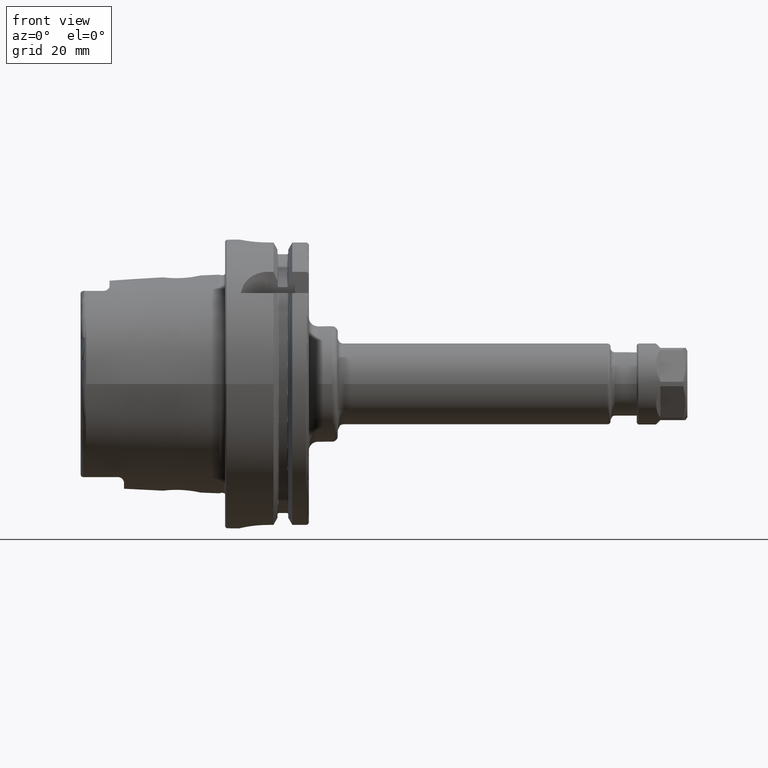
[diagram: clean part render]
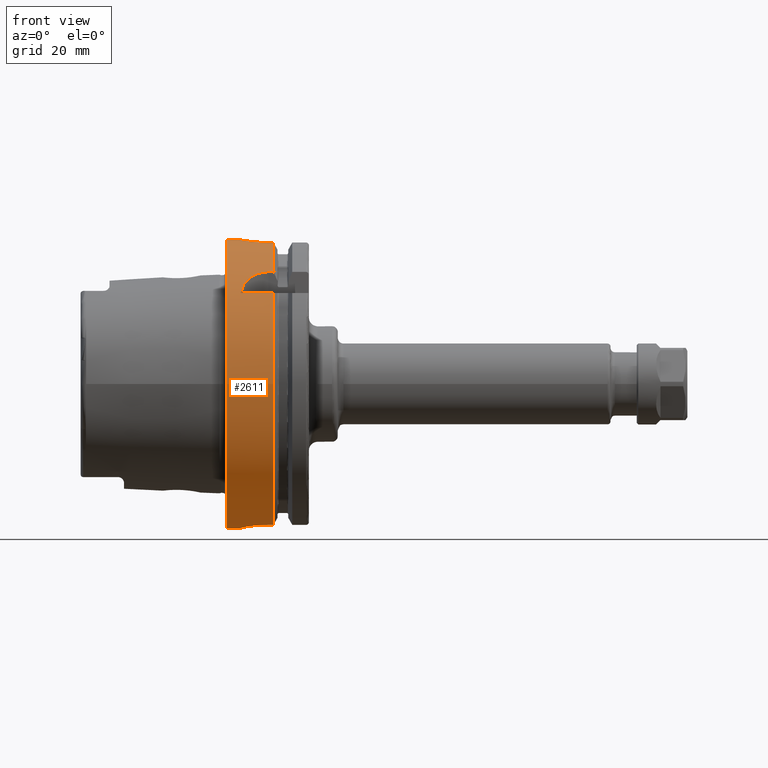
[diagram: same view with one face highlighted and labeled with its STEP entity id]
A machine part, front view. The second image highlights one B-rep face of the part: STEP entity #2611.
In plain terms, the highlighted cylindrical surface (bore or boss wall) has radius 50 mm, axis along (1, 0, 0).
Its self-contained STEP definition (entity closure, byte-faithful):
#114=B_SPLINE_CURVE_WITH_KNOTS('',3,(#4821,#4822,#4823,#4824,#4825,#4826,
#4827,#4828,#4829,#4830,#4831,#4832,#4833,#4834,#4835,#4836,#4837,#4838,
#4839,#4840,#4841,#4842,#4843,#4844,#4845,#4846),.UNSPECIFIED.,.F.,.F.,
(4,2,2,2,2,2,2,2,2,2,2,2,4),(0.,0.188478911015149,0.376957822030298,0.565436091508923,
0.753914360987547,0.942392630466172,1.1308708999448,1.31934981095995,1.50782872197509,
1.69630763299024,1.88478654400539,2.07326481348402,2.26174308296264),
 .UNSPECIFIED.);
#115=B_SPLINE_CURVE_WITH_KNOTS('',3,(#4847,#4848,#4849,#4850,#4851,#4852,
#4853,#4854,#4855,#4856),.UNSPECIFIED.,.F.,.F.,(4,2,2,2,4),(2.26174308296264,
2.45022135244127,2.63869962191989,2.82717853293504,3.01565744395019),
 .UNSPECIFIED.);
#116=B_SPLINE_CURVE_WITH_KNOTS('',3,(#4865,#4866,#4867,#4868,#4869,#4870,
#4871,#4872,#4873,#4874,#4875,#4876),.UNSPECIFIED.,.F.,.F.,(4,2,2,2,2,4),
(1.13213255574021,1.59216410027009,1.87572541272146,2.15928672517283,2.38471683342296,
2.61014694167308),.UNSPECIFIED.);
#123=B_SPLINE_CURVE_WITH_KNOTS('',3,(#4989,#4990,#4991,#4992,#4993,#4994,
#4995,#4996,#4997,#4998,#4999,#5000,#5001,#5002,#5003,#5004,#5005,#5006),
 .UNSPECIFIED.,.F.,.F.,(4,2,2,2,2,2,2,2,4),(0.,0.377795255890194,0.755590511780389,
1.13336459804459,1.51113868430879,1.88891277057299,2.26668685683718,2.64448211272738,
3.02227736861757),.UNSPECIFIED.);
#124=B_SPLINE_CURVE_WITH_KNOTS('',3,(#5014,#5015,#5016,#5017,#5018,#5019,
#5020,#5021,#5022,#5023),.UNSPECIFIED.,.F.,.F.,(4,2,2,2,4),(0.,0.377863193874929,
0.755726387749858,1.13417752669663,1.51262866564341),.UNSPECIFIED.);
#125=B_SPLINE_CURVE_WITH_KNOTS('',3,(#5027,#5028,#5029,#5030,#5031,#5032,
#5033,#5034,#5035,#5036),.UNSPECIFIED.,.F.,.F.,(4,2,2,2,4),(1.50996806152532,
1.8884192004721,2.26687033941887,2.6447335332938,3.02259672716873),
 .UNSPECIFIED.);
#185=FACE_BOUND('',#488,.T.);
#326=FACE_OUTER_BOUND('',#487,.T.);
#487=EDGE_LOOP('',(#1975,#1976,#1977,#1978,#1979,#1980,#1981,#1982,#1983,
#1984,#1985,#1986,#1987,#1988,#1989,#1990,#1991,#1992));
#488=EDGE_LOOP('',(#1993,#1994));
#655=LINE('',#4882,#797);
#661=LINE('',#4934,#803);
#666=LINE('',#4987,#808);
#667=LINE('',#5008,#809);
#668=LINE('',#5012,#810);
#669=LINE('',#5038,#811);
#670=LINE('',#5042,#812);
#797=VECTOR('',#3404,10.);
#803=VECTOR('',#3412,10.);
#808=VECTOR('',#3421,10.);
#809=VECTOR('',#3422,10.);
#810=VECTOR('',#3425,10.);
#811=VECTOR('',#3428,10.);
#812=VECTOR('',#3431,50.);
#954=CIRCLE('',#2908,50.);
#955=CIRCLE('',#2909,50.);
#956=CIRCLE('',#2910,50.);
#957=CIRCLE('',#2911,50.);
#958=CIRCLE('',#2912,50.);
#959=CIRCLE('',#2913,50.);
#1166=VERTEX_POINT('',#4818);
#1167=VERTEX_POINT('',#4820);
#1169=VERTEX_POINT('',#4863);
#1170=VERTEX_POINT('',#4864);
#1172=VERTEX_POINT('',#4881);
#1181=VERTEX_POINT('',#4933);
#1190=VERTEX_POINT('',#4984);
#1191=VERTEX_POINT('',#4986);
#1192=VERTEX_POINT('',#4988);
#1193=VERTEX_POINT('',#5007);
#1194=VERTEX_POINT('',#5009);
#1195=VERTEX_POINT('',#5011);
#1196=VERTEX_POINT('',#5013);
#1197=VERTEX_POINT('',#5024);
#1198=VERTEX_POINT('',#5026);
#1199=VERTEX_POINT('',#5037);
#1200=VERTEX_POINT('',#5039);
#1201=VERTEX_POINT('',#5041);
#1462=EDGE_CURVE('',#1167,#1166,#114,.T.);
#1463=EDGE_CURVE('',#1166,#1167,#115,.T.);
#1466=EDGE_CURVE('',#1169,#1170,#116,.T.);
#1469=EDGE_CURVE('',#1170,#1172,#655,.T.);
#1480=EDGE_CURVE('',#1181,#1169,#661,.T.);
#1490=EDGE_CURVE('',#1190,#1172,#954,.T.);
#1491=EDGE_CURVE('',#1190,#1191,#666,.T.);
#1492=EDGE_CURVE('',#1191,#1192,#123,.T.);
#1493=EDGE_CURVE('',#1192,#1193,#667,.T.);
#1494=EDGE_CURVE('',#1194,#1193,#955,.T.);
#1495=EDGE_CURVE('',#1194,#1195,#668,.T.);
#1496=EDGE_CURVE('',#1195,#1196,#124,.T.);
#1497=EDGE_CURVE('',#1196,#1197,#956,.T.);
#1498=EDGE_CURVE('',#1197,#1198,#125,.T.);
#1499=EDGE_CURVE('',#1198,#1199,#669,.T.);
#1500=EDGE_CURVE('',#1200,#1199,#957,.T.);
#1501=EDGE_CURVE('',#1200,#1201,#670,.T.);
#1502=EDGE_CURVE('',#1201,#1201,#958,.T.);
#1503=EDGE_CURVE('',#1181,#1200,#959,.T.);
#1975=ORIENTED_EDGE('',*,*,#1480,.T.);
#1976=ORIENTED_EDGE('',*,*,#1466,.T.);
#1977=ORIENTED_EDGE('',*,*,#1469,.T.);
#1978=ORIENTED_EDGE('',*,*,#1490,.F.);
#1979=ORIENTED_EDGE('',*,*,#1491,.T.);
#1980=ORIENTED_EDGE('',*,*,#1492,.T.);
#1981=ORIENTED_EDGE('',*,*,#1493,.T.);
#1982=ORIENTED_EDGE('',*,*,#1494,.F.);
#1983=ORIENTED_EDGE('',*,*,#1495,.T.);
#1984=ORIENTED_EDGE('',*,*,#1496,.T.);
#1985=ORIENTED_EDGE('',*,*,#1497,.T.);
#1986=ORIENTED_EDGE('',*,*,#1498,.T.);
#1987=ORIENTED_EDGE('',*,*,#1499,.T.);
#1988=ORIENTED_EDGE('',*,*,#1500,.F.);
#1989=ORIENTED_EDGE('',*,*,#1501,.T.);
#1990=ORIENTED_EDGE('',*,*,#1502,.T.);
#1991=ORIENTED_EDGE('',*,*,#1501,.F.);
#1992=ORIENTED_EDGE('',*,*,#1503,.F.);
#1993=ORIENTED_EDGE('',*,*,#1462,.T.);
#1994=ORIENTED_EDGE('',*,*,#1463,.T.);
#2538=CYLINDRICAL_SURFACE('',#2907,50.);
#2611=ADVANCED_FACE('',(#326,#185),#2538,.T.);
#2907=AXIS2_PLACEMENT_3D('',#4983,#3417,#3418);
#2908=AXIS2_PLACEMENT_3D('',#4985,#3419,#3420);
#2909=AXIS2_PLACEMENT_3D('',#5010,#3423,#3424);
#2910=AXIS2_PLACEMENT_3D('',#5025,#3426,#3427);
#2911=AXIS2_PLACEMENT_3D('',#5040,#3429,#3430);
#2912=AXIS2_PLACEMENT_3D('',#5043,#3432,#3433);
#2913=AXIS2_PLACEMENT_3D('',#5044,#3434,#3435);
#3404=DIRECTION('',(1.,0.,0.));
#3412=DIRECTION('',(-1.,0.,0.));
#3417=DIRECTION('center_axis',(1.,0.,0.));
#3418=DIRECTION('ref_axis',(0.,1.,0.));
#3419=DIRECTION('center_axis',(1.,0.,0.));
#3420=DIRECTION('ref_axis',(0.,0.,-1.));
#3421=DIRECTION('',(-1.,0.,0.));
#3422=DIRECTION('',(1.,0.,0.));
#3423=DIRECTION('center_axis',(1.,0.,0.));
#3424=DIRECTION('ref_axis',(0.,0.,-1.));
#3425=DIRECTION('',(-1.,0.,0.));
#3426=DIRECTION('center_axis',(-1.,0.,0.));
#3427=DIRECTION('ref_axis',(0.,1.,0.));
#3428=DIRECTION('',(1.,0.,0.));
#3429=DIRECTION('center_axis',(1.,0.,0.));
#3430=DIRECTION('ref_axis',(0.,0.,-1.));
#3431=DIRECTION('',(-1.,0.,0.));
#3432=DIRECTION('center_axis',(1.,0.,0.));
#3433=DIRECTION('ref_axis',(0.,0.,-1.));
#3434=DIRECTION('center_axis',(1.,0.,0.));
#3435=DIRECTION('ref_axis',(0.,0.,-1.));
#4818=CARTESIAN_POINT('',(12.,50.,-6.12323399573677E-16));
#4820=CARTESIAN_POINT('',(6.99999999999999,49.749371855331,5.));
#4821=CARTESIAN_POINT('Ctrl Pts',(6.99999999999999,49.749371855331,5.));
#4822=CARTESIAN_POINT('Ctrl Pts',(6.37173696328283,49.749371855331,5.));
#4823=CARTESIAN_POINT('Ctrl Pts',(5.70188570880885,49.7624993987098,4.87435544587055));
#4824=CARTESIAN_POINT('Ctrl Pts',(4.4701142477173,49.8098541153698,4.36395693611591));
#4825=CARTESIAN_POINT('Ctrl Pts',(3.90815809537484,49.8433908660961,3.97922590724033));
#4826=CARTESIAN_POINT('Ctrl Pts',(3.02077560297968,49.9062957431473,3.09184341484517));
#4827=CARTESIAN_POINT('Ctrl Pts',(2.63604339567929,49.9397591808605,2.52988660036719));
#4828=CARTESIAN_POINT('Ctrl Pts',(2.12564400622109,49.9869460568296,1.29811292154946));
#4829=CARTESIAN_POINT('Ctrl Pts',(1.99999999999999,50.,0.628260898262081));
#4830=CARTESIAN_POINT('Ctrl Pts',(1.99999999999999,50.,-0.628260898262082));
#4831=CARTESIAN_POINT('Ctrl Pts',(2.12564400622109,49.9869460568296,-1.29811292154947));
#4832=CARTESIAN_POINT('Ctrl Pts',(2.63604339567929,49.9397591808605,-2.52988660036719));
#4833=CARTESIAN_POINT('Ctrl Pts',(3.02077560297968,49.9062957431473,-3.09184341484517));
#4834=CARTESIAN_POINT('Ctrl Pts',(3.90815809537484,49.8433908660961,-3.97922590724033));
#4835=CARTESIAN_POINT('Ctrl Pts',(4.4701142477173,49.8098541153698,-4.36395693611591));
#4836=CARTESIAN_POINT('Ctrl Pts',(5.70188570880885,49.7624993987098,-4.87435544587055));
#4837=CARTESIAN_POINT('Ctrl Pts',(6.37173696328283,49.749371855331,-5.));
#4838=CARTESIAN_POINT('Ctrl Pts',(7.62826303671716,49.749371855331,-5.));
#4839=CARTESIAN_POINT('Ctrl Pts',(8.29811429119114,49.7624993987098,-4.87435544587055));
#4840=CARTESIAN_POINT('Ctrl Pts',(9.52988575228269,49.8098541153698,-4.36395693611592));
#4841=CARTESIAN_POINT('Ctrl Pts',(10.0918419046251,49.8433908660961,-3.97922590724033));
#4842=CARTESIAN_POINT('Ctrl Pts',(10.9792243970203,49.9062957431473,-3.09184341484517));
#4843=CARTESIAN_POINT('Ctrl Pts',(11.3639566043207,49.9397591808605,-2.52988660036719));
#4844=CARTESIAN_POINT('Ctrl Pts',(11.8743559937789,49.9869460568296,-1.29811292154946));
#4845=CARTESIAN_POINT('Ctrl Pts',(12.,50.,-0.628260898262081));
#4846=CARTESIAN_POINT('Ctrl Pts',(12.,50.,-4.16333634234434E-16));
#4847=CARTESIAN_POINT('Ctrl Pts',(12.,50.,-6.93889390390723E-16));
#4848=CARTESIAN_POINT('Ctrl Pts',(12.,50.,0.62826089826208));
#4849=CARTESIAN_POINT('Ctrl Pts',(11.8743559937789,49.9869460568296,1.29811292154946));
#4850=CARTESIAN_POINT('Ctrl Pts',(11.3639566043207,49.9397591808605,2.52988660036719));
#4851=CARTESIAN_POINT('Ctrl Pts',(10.9792243970203,49.9062957431473,3.09184341484517));
#4852=CARTESIAN_POINT('Ctrl Pts',(10.0918419046251,49.8433908660961,3.97922590724033));
#4853=CARTESIAN_POINT('Ctrl Pts',(9.5298857522827,49.8098541153698,4.36395693611591));
#4854=CARTESIAN_POINT('Ctrl Pts',(8.29811429119114,49.7624993987098,4.87435544587055));
#4855=CARTESIAN_POINT('Ctrl Pts',(7.62826303671716,49.749371855331,5.));
#4856=CARTESIAN_POINT('Ctrl Pts',(6.99999999999999,49.749371855331,5.));
#4863=CARTESIAN_POINT('',(5.36310214079494,-38.8297566307078,31.5));
#4864=CARTESIAN_POINT('',(15.,-31.5,38.8297566307078));
#4865=CARTESIAN_POINT('Ctrl Pts',(5.36310214079494,-38.8297566307078,31.5));
#4866=CARTESIAN_POINT('Ctrl Pts',(5.63795050776221,-37.8378299510303,32.722738779917));
#4867=CARTESIAN_POINT('Ctrl Pts',(6.08245260240086,-36.8264130955983,33.8486741193789));
#4868=CARTESIAN_POINT('Ctrl Pts',(7.14730321206235,-35.2667182945212,35.4540138707062));
#4869=CARTESIAN_POINT('Ctrl Pts',(7.68113760815893,-34.6306580359392,36.0741351437033));
#4870=CARTESIAN_POINT('Ctrl Pts',(8.97436758466638,-33.4722127660808,37.1515365058173));
#4871=CARTESIAN_POINT('Ctrl Pts',(9.73574998094174,-32.9521170857844,37.6088911783762));
#4872=CARTESIAN_POINT('Ctrl Pts',(11.1521999725134,-32.2432973482077,38.2170233500259));
#4873=CARTESIAN_POINT('Ctrl Pts',(11.8888981504148,-31.9629772872452,38.4503075998006));
#4874=CARTESIAN_POINT('Ctrl Pts',(13.4369856471743,-31.5908755949743,38.7566077888176));
#4875=CARTESIAN_POINT('Ctrl Pts',(14.2485663058329,-31.5,38.8297566307078));
#4876=CARTESIAN_POINT('Ctrl Pts',(15.,-31.5,38.8297566307078));
#4881=CARTESIAN_POINT('',(16.7379709790786,-31.5,38.8297566307078));
#4882=CARTESIAN_POINT('',(8.61898548953931,-31.5,38.8297566307078));
#4933=CARTESIAN_POINT('',(16.7379709790786,-38.8297566307078,31.5));
#4934=CARTESIAN_POINT('',(8.61898548953931,-38.8297566307078,31.5));
#4983=CARTESIAN_POINT('Origin',(8.61898548953931,0.,0.));
#4984=CARTESIAN_POINT('',(16.7379709790786,-10.,48.9897948556636));
#4985=CARTESIAN_POINT('Origin',(16.7379709790786,0.,0.));
#4986=CARTESIAN_POINT('',(15.,-10.,48.9897948556636));
#4987=CARTESIAN_POINT('',(8.61898548953931,-10.,48.9897948556636));
#4988=CARTESIAN_POINT('',(15.,10.,48.9897948556636));
#4989=CARTESIAN_POINT('Ctrl Pts',(15.,-10.,48.9897948556636));
#4990=CARTESIAN_POINT('Ctrl Pts',(13.740682480366,-10.,48.9897948556636));
#4991=CARTESIAN_POINT('Ctrl Pts',(12.3998222283811,-9.74762796248614,49.0433876618447));
#4992=CARTESIAN_POINT('Ctrl Pts',(9.93707994969945,-8.72605417648382,49.2354150792771));
#4993=CARTESIAN_POINT('Ctrl Pts',(8.81489539818993,-7.95703102192089,49.3709085101933));
#4994=CARTESIAN_POINT('Ctrl Pts',(7.04301862271998,-6.18515424645094,49.6240337638318));
#4995=CARTESIAN_POINT('Ctrl Pts',(6.27395658455242,-5.06294861197626,49.7583347151863));
#4996=CARTESIAN_POINT('Ctrl Pts',(5.25235457764165,-2.60013306081865,49.9476188647081));
#4997=CARTESIAN_POINT('Ctrl Pts',(4.99999999999999,-1.259246954214,50.));
#4998=CARTESIAN_POINT('Ctrl Pts',(4.99999999999999,1.259246954214,50.));
#4999=CARTESIAN_POINT('Ctrl Pts',(5.25235457764165,2.60013306081865,49.9476188647081));
#5000=CARTESIAN_POINT('Ctrl Pts',(6.27395658455242,5.06294861197626,49.7583347151863));
#5001=CARTESIAN_POINT('Ctrl Pts',(7.04301862271998,6.18515424645094,49.6240337638318));
#5002=CARTESIAN_POINT('Ctrl Pts',(8.81489539818993,7.95703102192089,49.3709085101933));
#5003=CARTESIAN_POINT('Ctrl Pts',(9.93707994969945,8.72605417648382,49.2354150792771));
#5004=CARTESIAN_POINT('Ctrl Pts',(12.3998222283811,9.74762796248614,49.0433876618447));
#5005=CARTESIAN_POINT('Ctrl Pts',(13.740682480366,10.,48.9897948556636));
#5006=CARTESIAN_POINT('Ctrl Pts',(15.,10.,48.9897948556636));
#5007=CARTESIAN_POINT('',(16.7379709790786,10.,48.9897948556636));
#5008=CARTESIAN_POINT('',(8.61898548953931,10.,48.9897948556636));
#5009=CARTESIAN_POINT('',(16.7379709790786,11.,-48.7749935930288));
#5010=CARTESIAN_POINT('Origin',(16.7379709790786,0.,0.));
#5011=CARTESIAN_POINT('',(15.,11.,-48.7749935930288));
#5012=CARTESIAN_POINT('',(8.61898548953931,11.,-48.7749935930288));
#5013=CARTESIAN_POINT('',(4.99999999999999,0.999999999999997,-49.9899989998));
#5014=CARTESIAN_POINT('Ctrl Pts',(15.,11.,-48.7749935930288));
#5015=CARTESIAN_POINT('Ctrl Pts',(13.7404560204169,11.,-48.7749935930288));
#5016=CARTESIAN_POINT('Ctrl Pts',(12.3998213084084,10.7475295248871,-48.8340306344483));
#5017=CARTESIAN_POINT('Ctrl Pts',(9.9383361278342,9.72667325975831,-49.0475663096823));
#5018=CARTESIAN_POINT('Ctrl Pts',(8.81713821454868,8.95850056252305,-49.1990678796225));
#5019=CARTESIAN_POINT('Ctrl Pts',(7.04551978193545,7.18842719108522,-49.4887060645896));
#5020=CARTESIAN_POINT('Ctrl Pts',(6.27594389465425,6.06650925178,-49.6460359942126));
#5021=CARTESIAN_POINT('Ctrl Pts',(5.25307325920197,3.60309260864685,-49.8853600567865));
#5022=CARTESIAN_POINT('Ctrl Pts',(4.99999999999999,2.26125147049483,-49.9647689238702));
#5023=CARTESIAN_POINT('Ctrl Pts',(4.99999999999999,1.,-49.9899989998));
#5024=CARTESIAN_POINT('',(4.99999999999999,-1.00000000000001,-49.9899989998));
#5025=CARTESIAN_POINT('Origin',(4.99999999999999,0.,0.));
#5026=CARTESIAN_POINT('',(15.,-11.,-48.7749935930288));
#5027=CARTESIAN_POINT('Ctrl Pts',(4.99999999999999,-1.,-49.9899989998));
#5028=CARTESIAN_POINT('Ctrl Pts',(4.99999999999999,-2.26125147049483,-49.9647689238702));
#5029=CARTESIAN_POINT('Ctrl Pts',(5.25307325920197,-3.60309260864686,-49.8853600567865));
#5030=CARTESIAN_POINT('Ctrl Pts',(6.27594389465425,-6.06650925178001,-49.6460359942126));
#5031=CARTESIAN_POINT('Ctrl Pts',(7.04551978193545,-7.18842719108522,-49.4887060645896));
#5032=CARTESIAN_POINT('Ctrl Pts',(8.81713821454868,-8.95850056252306,-49.1990678796225));
#5033=CARTESIAN_POINT('Ctrl Pts',(9.9383361278342,-9.72667325975831,-49.0475663096823));
#5034=CARTESIAN_POINT('Ctrl Pts',(12.3998213084084,-10.7475295248871,-48.8340306344483));
#5035=CARTESIAN_POINT('Ctrl Pts',(13.7404560204169,-11.,-48.7749935930288));
#5036=CARTESIAN_POINT('Ctrl Pts',(15.,-11.,-48.7749935930288));
#5037=CARTESIAN_POINT('',(16.7379709790786,-11.,-48.7749935930288));
#5038=CARTESIAN_POINT('',(8.61898548953931,-11.,-48.7749935930288));
#5039=CARTESIAN_POINT('',(16.7379709790786,-50.,-6.12323399573677E-15));
#5040=CARTESIAN_POINT('Origin',(16.7379709790786,0.,0.));
#5041=CARTESIAN_POINT('',(0.499999999999999,-50.,-6.12323399573677E-15));
#5042=CARTESIAN_POINT('',(8.61898548953931,-50.,-6.12323399573677E-15));
#5043=CARTESIAN_POINT('Origin',(0.5,0.,0.));
#5044=CARTESIAN_POINT('Origin',(16.7379709790786,0.,0.));